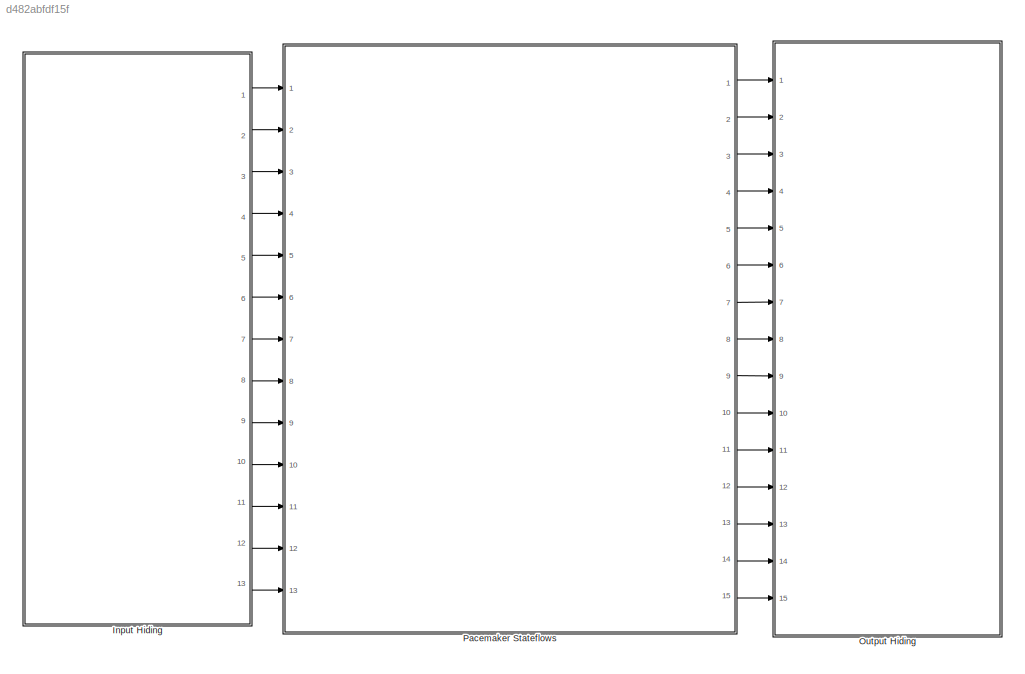
MODEL slx_d482abfdf15f
KIND model
CONFIG AbsTol = auto
CONFIG EnableMultiTasking = on
CONFIG FixedStep = 1e-3
CONFIG MaxStep = auto
CONFIG MinStep = auto
CONFIG RelTol = 1e-3
CONFIG SampleTimeConstraint = Unconstrained
CONFIG SolverName = FixedStepAuto
CONFIG StartTime = 0.0
CONFIG StopTime = 10.0
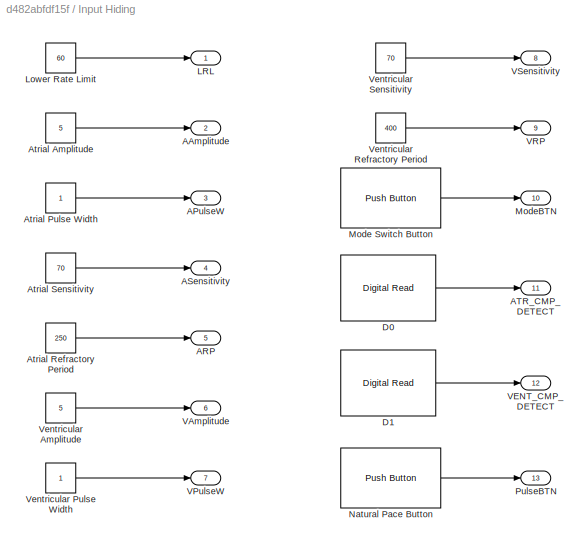
BLOCK [SubSystem] Input Hiding
  Ports = [0, 13]
  RequestExecContextInheritance = off
BLOCK [Outport] Input Hiding/AAmplitude
  OutDataTypeStr = double
  Port = 2
BLOCK [Outport] Input Hiding/APulseW
  OutDataTypeStr = double
  Port = 3
BLOCK [Outport] Input Hiding/ARP
  OutDataTypeStr = double
  Port = 5
BLOCK [Outport] Input Hiding/ASensitivity
  OutDataTypeStr = double
  Port = 4
BLOCK [Outport] Input Hiding/ATR_CMP_DETECT
  OutDataTypeStr = boolean
  Port = 11
BLOCK [Constant] Input Hiding/Atrial Amplitude
  OutDataTypeStr = double
  Value = 5
BLOCK [Constant] Input Hiding/Atrial Pulse Width
  OutDataTypeStr = double
BLOCK [Constant] Input Hiding/Atrial Refractory Period
  OutDataTypeStr = double
  Value = 250
BLOCK [Constant] Input Hiding/Atrial Sensitivity
  OutDataTypeStr = double
  Value = 70
BLOCK [Reference] Input Hiding/D0  REF=frdmk64flib/Digital Read
  Ports = [0, 1]
  SourceBlock = frdmk64flib/Digital Read
  SourceProductBaseCode = EC_FRDM_K64F
  SourceType = freedomk64f.DigitalRead
BLOCK [Reference] Input Hiding/D1  REF=frdmk64flib/Digital Read
  Ports = [0, 1]
  SourceBlock = frdmk64flib/Digital Read
  SourceProductBaseCode = EC_FRDM_K64F
  SourceType = freedomk64f.DigitalRead
BLOCK [Outport] Input Hiding/LRL
  OutDataTypeStr = double
BLOCK [Constant] Input Hiding/Lower Rate Limit
  OutDataTypeStr = double
  Value = 60
BLOCK [Reference] Input Hiding/Mode Switch Button  REF=frdmk64flib/Push Button
  Ports = [0, 1]
  SourceBlock = frdmk64flib/Push Button
  SourceProductBaseCode = EC_FRDM_K64F
  SourceType = freedomk64f.PushButton
BLOCK [Outport] Input Hiding/ModeBTN
  OutDataTypeStr = boolean
  Port = 10
BLOCK [Reference] Input Hiding/Natural Pace Button  REF=frdmk64flib/Push Button
  Ports = [0, 1]
  SourceBlock = frdmk64flib/Push Button
  SourceProductBaseCode = EC_FRDM_K64F
  SourceType = freedomk64f.PushButton
BLOCK [Outport] Input Hiding/PulseBTN
  OutDataTypeStr = boolean
  Port = 13
BLOCK [Outport] Input Hiding/VAmplitude
  OutDataTypeStr = double
  Port = 6
BLOCK [Outport] Input Hiding/VENT_CMP_DETECT
  OutDataTypeStr = boolean
  Port = 12
BLOCK [Outport] Input Hiding/VPulseW
  OutDataTypeStr = double
  Port = 7
BLOCK [Outport] Input Hiding/VRP
  OutDataTypeStr = double
  Port = 9
BLOCK [Outport] Input Hiding/VSensitivity
  OutDataTypeStr = double
  Port = 8
BLOCK [Constant] Input Hiding/Ventricular Amplitude
  OutDataTypeStr = double
  Value = 5
BLOCK [Constant] Input Hiding/Ventricular Pulse Width
  OutDataTypeStr = double
BLOCK [Constant] Input Hiding/Ventricular Refractory Period
  OutDataTypeStr = double
  Value = 400
BLOCK [Constant] Input Hiding/Ventricular Sensitivity
  OutDataTypeStr = double
  Value = 70
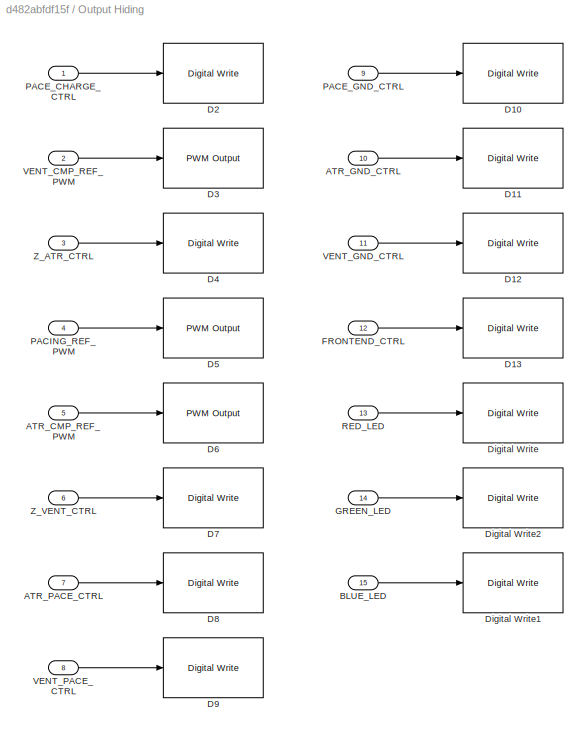
BLOCK [SubSystem] Output Hiding
  Ports = [15]
  RequestExecContextInheritance = off
BLOCK [Inport] Output Hiding/ATR_CMP_REF_PWM
  OutDataTypeStr = double
  Port = 5
BLOCK [Inport] Output Hiding/ATR_GND_CTRL
  OutDataTypeStr = double
  Port = 10
BLOCK [Inport] Output Hiding/ATR_PACE_CTRL
  OutDataTypeStr = double
  Port = 7
BLOCK [Inport] Output Hiding/BLUE_LED
  OutDataTypeStr = double
  Port = 15
BLOCK [Reference] Output Hiding/D10  REF=frdmk64flib/Digital Write
  Ports = [1]
  SourceBlock = frdmk64flib/Digital Write
  SourceProductBaseCode = EC_FRDM_K64F
  SourceType = freedomk64f.DigitalWrite
BLOCK [Reference] Output Hiding/D11  REF=frdmk64flib/Digital Write
  Ports = [1]
  SourceBlock = frdmk64flib/Digital Write
  SourceProductBaseCode = EC_FRDM_K64F
  SourceType = freedomk64f.DigitalWrite
BLOCK [Reference] Output Hiding/D12  REF=frdmk64flib/Digital Write
  Ports = [1]
  SourceBlock = frdmk64flib/Digital Write
  SourceProductBaseCode = EC_FRDM_K64F
  SourceType = freedomk64f.DigitalWrite
BLOCK [Reference] Output Hiding/D13  REF=frdmk64flib/Digital Write
  Ports = [1]
  SourceBlock = frdmk64flib/Digital Write
  SourceProductBaseCode = EC_FRDM_K64F
  SourceType = freedomk64f.DigitalWrite
BLOCK [Reference] Output Hiding/D2  REF=frdmk64flib/Digital Write
  Ports = [1]
  SourceBlock = frdmk64flib/Digital Write
  SourceProductBaseCode = EC_FRDM_K64F
  SourceType = freedomk64f.DigitalWrite
BLOCK [Reference] Output Hiding/D3  REF=frdmk64flib/PWM Output
  Ports = [1]
  SourceBlock = frdmk64flib/PWM Output
  SourceProductBaseCode = EC_FRDM_K64F
  SourceType = freedomk64f.PWMOutput
BLOCK [Reference] Output Hiding/D4  REF=frdmk64flib/Digital Write
  Ports = [1]
  SourceBlock = frdmk64flib/Digital Write
  SourceProductBaseCode = EC_FRDM_K64F
  SourceType = freedomk64f.DigitalWrite
BLOCK [Reference] Output Hiding/D5  REF=frdmk64flib/PWM Output
  Ports = [1]
  SourceBlock = frdmk64flib/PWM Output
  SourceProductBaseCode = EC_FRDM_K64F
  SourceType = freedomk64f.PWMOutput
BLOCK [Reference] Output Hiding/D6  REF=frdmk64flib/PWM Output
  Ports = [1]
  SourceBlock = frdmk64flib/PWM Output
  SourceProductBaseCode = EC_FRDM_K64F
  SourceType = freedomk64f.PWMOutput
BLOCK [Reference] Output Hiding/D7  REF=frdmk64flib/Digital Write
  Ports = [1]
  SourceBlock = frdmk64flib/Digital Write
  SourceProductBaseCode = EC_FRDM_K64F
  SourceType = freedomk64f.DigitalWrite
BLOCK [Reference] Output Hiding/D8   REF=frdmk64flib/Digital Write
  Ports = [1]
  SourceBlock = frdmk64flib/Digital Write
  SourceProductBaseCode = EC_FRDM_K64F
  SourceType = freedomk64f.DigitalWrite
BLOCK [Reference] Output Hiding/D9  REF=frdmk64flib/Digital Write
  Ports = [1]
  SourceBlock = frdmk64flib/Digital Write
  SourceProductBaseCode = EC_FRDM_K64F
  SourceType = freedomk64f.DigitalWrite
BLOCK [Reference] Output Hiding/Digital Write  REF=frdmk64flib/Digital Write
  Ports = [1]
  SourceBlock = frdmk64flib/Digital Write
  SourceProductBaseCode = EC_FRDM_K64F
  SourceType = freedomk64f.DigitalWrite
BLOCK [Reference] Output Hiding/Digital Write1  REF=frdmk64flib/Digital Write
  Ports = [1]
  SourceBlock = frdmk64flib/Digital Write
  SourceProductBaseCode = EC_FRDM_K64F
  SourceType = freedomk64f.DigitalWrite
BLOCK [Reference] Output Hiding/Digital Write2  REF=frdmk64flib/Digital Write
  Ports = [1]
  SourceBlock = frdmk64flib/Digital Write
  SourceProductBaseCode = EC_FRDM_K64F
  SourceType = freedomk64f.DigitalWrite
BLOCK [Inport] Output Hiding/FRONTEND_CTRL
  OutDataTypeStr = double
  Port = 12
BLOCK [Inport] Output Hiding/GREEN_LED
  OutDataTypeStr = double
  Port = 14
BLOCK [Inport] Output Hiding/PACE_CHARGE_CTRL
  OutDataTypeStr = double
BLOCK [Inport] Output Hiding/PACE_GND_CTRL
  OutDataTypeStr = double
  Port = 9
BLOCK [Inport] Output Hiding/PACING_REF_PWM
  OutDataTypeStr = double
  Port = 4
BLOCK [Inport] Output Hiding/RED_LED
  OutDataTypeStr = double
  Port = 13
BLOCK [Inport] Output Hiding/VENT_CMP_REF_PWM
  OutDataTypeStr = double
  Port = 2
BLOCK [Inport] Output Hiding/VENT_GND_CTRL
  OutDataTypeStr = double
  Port = 11
BLOCK [Inport] Output Hiding/VENT_PACE_CTRL
  OutDataTypeStr = double
  Port = 8
BLOCK [Inport] Output Hiding/Z_ATR_CTRL
  OutDataTypeStr = double
  Port = 3
BLOCK [Inport] Output Hiding/Z_VENT_CTRL
  OutDataTypeStr = double
  Port = 6
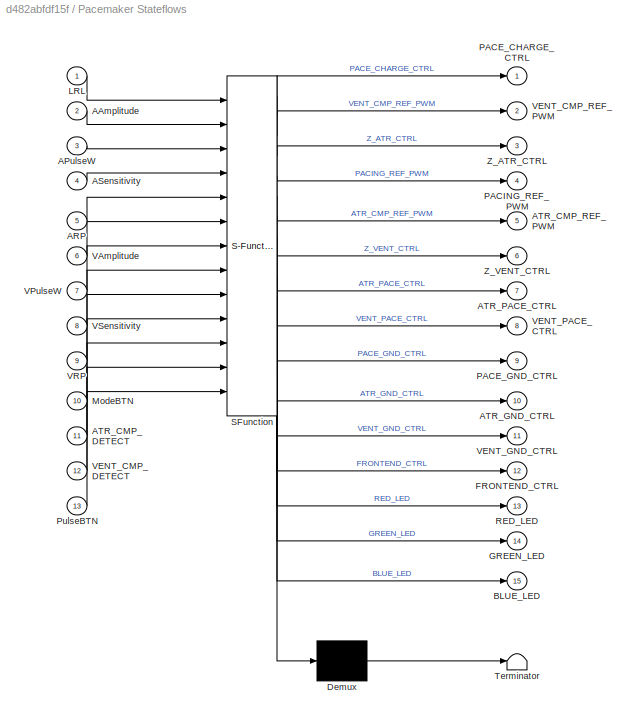
BLOCK [SubSystem] Pacemaker Stateflows
  ErrorFcn = Stateflow.Translate.translate
  PermitHierarchicalResolution = ExplicitOnly
  Ports = [13, 15]
  RequestExecContextInheritance = off
  SFBlockType = Chart
  TreatAsAtomicUnit = on
BLOCK [Demux] Pacemaker Stateflows/ Demux 
  Outputs = 1
  Ports = [1, 1]
BLOCK [S-Function] Pacemaker Stateflows/ SFunction 
  EnableBusSupport = on
  FunctionName = sf_sfun
  PortCounts = [13 16]
  Ports = [13, 16]
  SFcnIsStateOwnerBlock = off
  SFunctionDeploymentMode = off
  Tag = Stateflow S-Function 3
BLOCK [Terminator] Pacemaker Stateflows/ Terminator 
BLOCK [Inport] Pacemaker Stateflows/AAmplitude
  Port = 2
BLOCK [Inport] Pacemaker Stateflows/APulseW
  Port = 3
BLOCK [Inport] Pacemaker Stateflows/ARP
  Port = 5
BLOCK [Inport] Pacemaker Stateflows/ASensitivity
  Port = 4
BLOCK [Inport] Pacemaker Stateflows/ATR_CMP_DETECT
  Port = 11
BLOCK [Outport] Pacemaker Stateflows/ATR_CMP_REF_PWM
  Port = 5
BLOCK [Outport] Pacemaker Stateflows/ATR_GND_CTRL
  Port = 10
BLOCK [Outport] Pacemaker Stateflows/ATR_PACE_CTRL
  Port = 7
BLOCK [Outport] Pacemaker Stateflows/BLUE_LED
  Port = 15
BLOCK [Outport] Pacemaker Stateflows/FRONTEND_CTRL
  Port = 12
BLOCK [Outport] Pacemaker Stateflows/GREEN_LED
  Port = 14
BLOCK [Inport] Pacemaker Stateflows/LRL
BLOCK [Inport] Pacemaker Stateflows/ModeBTN
  Port = 10
BLOCK [Outport] Pacemaker Stateflows/PACE_CHARGE_CTRL
BLOCK [Outport] Pacemaker Stateflows/PACE_GND_CTRL
  Port = 9
BLOCK [Outport] Pacemaker Stateflows/PACING_REF_PWM
  Port = 4
BLOCK [Inport] Pacemaker Stateflows/PulseBTN
  Port = 13
BLOCK [Outport] Pacemaker Stateflows/RED_LED
  Port = 13
BLOCK [Inport] Pacemaker Stateflows/VAmplitude
  Port = 6
BLOCK [Inport] Pacemaker Stateflows/VENT_CMP_DETECT
  Port = 12
BLOCK [Outport] Pacemaker Stateflows/VENT_CMP_REF_PWM
  Port = 2
BLOCK [Outport] Pacemaker Stateflows/VENT_GND_CTRL
  Port = 11
BLOCK [Outport] Pacemaker Stateflows/VENT_PACE_CTRL
  Port = 8
BLOCK [Inport] Pacemaker Stateflows/VPulseW
  Port = 7
BLOCK [Inport] Pacemaker Stateflows/VRP
  Port = 9
BLOCK [Inport] Pacemaker Stateflows/VSensitivity
  Port = 8
BLOCK [Outport] Pacemaker Stateflows/Z_ATR_CTRL
  Port = 3
BLOCK [Outport] Pacemaker Stateflows/Z_VENT_CTRL
  Port = 6
LINE Input Hiding/Atrial Amplitude:1 -> Input Hiding/AAmplitude:1
LINE Input Hiding/Atrial Pulse Width:1 -> Input Hiding/APulseW:1
LINE Input Hiding/Atrial Refractory Period:1 -> Input Hiding/ARP:1
LINE Input Hiding/Atrial Sensitivity:1 -> Input Hiding/ASensitivity:1
LINE Input Hiding/D0:1 -> Input Hiding/ATR_CMP_DETECT:1
LINE Input Hiding/D1:1 -> Input Hiding/VENT_CMP_DETECT:1
LINE Input Hiding/Lower Rate Limit:1 -> Input Hiding/LRL:1
LINE Input Hiding/Mode Switch Button:1 -> Input Hiding/ModeBTN:1
LINE Input Hiding/Natural Pace Button:1 -> Input Hiding/PulseBTN:1
LINE Input Hiding/Ventricular Amplitude:1 -> Input Hiding/VAmplitude:1
LINE Input Hiding/Ventricular Pulse Width:1 -> Input Hiding/VPulseW:1
LINE Input Hiding/Ventricular Refractory Period:1 -> Input Hiding/VRP:1
LINE Input Hiding/Ventricular Sensitivity:1 -> Input Hiding/VSensitivity:1
LINE Input Hiding:1 -> Pacemaker Stateflows:1
LINE Input Hiding:10 -> Pacemaker Stateflows:10
LINE Input Hiding:11 -> Pacemaker Stateflows:11
LINE Input Hiding:12 -> Pacemaker Stateflows:12
LINE Input Hiding:13 -> Pacemaker Stateflows:13
LINE Input Hiding:2 -> Pacemaker Stateflows:2
LINE Input Hiding:3 -> Pacemaker Stateflows:3
LINE Input Hiding:4 -> Pacemaker Stateflows:4
LINE Input Hiding:5 -> Pacemaker Stateflows:5
LINE Input Hiding:6 -> Pacemaker Stateflows:6
LINE Input Hiding:7 -> Pacemaker Stateflows:7
LINE Input Hiding:8 -> Pacemaker Stateflows:8
LINE Input Hiding:9 -> Pacemaker Stateflows:9
LINE Output Hiding/ATR_CMP_REF_PWM:1 -> Output Hiding/D6:1
LINE Output Hiding/ATR_GND_CTRL:1 -> Output Hiding/D11:1
LINE Output Hiding/ATR_PACE_CTRL:1 -> Output Hiding/D8 :1
LINE Output Hiding/BLUE_LED:1 -> Output Hiding/Digital Write1:1
LINE Output Hiding/FRONTEND_CTRL:1 -> Output Hiding/D13:1
LINE Output Hiding/GREEN_LED:1 -> Output Hiding/Digital Write2:1
LINE Output Hiding/PACE_CHARGE_CTRL:1 -> Output Hiding/D2:1
LINE Output Hiding/PACE_GND_CTRL:1 -> Output Hiding/D10:1
LINE Output Hiding/PACING_REF_PWM:1 -> Output Hiding/D5:1
LINE Output Hiding/RED_LED:1 -> Output Hiding/Digital Write:1
LINE Output Hiding/VENT_CMP_REF_PWM:1 -> Output Hiding/D3:1
LINE Output Hiding/VENT_GND_CTRL:1 -> Output Hiding/D12:1
LINE Output Hiding/VENT_PACE_CTRL:1 -> Output Hiding/D9:1
LINE Output Hiding/Z_ATR_CTRL:1 -> Output Hiding/D4:1
LINE Output Hiding/Z_VENT_CTRL:1 -> Output Hiding/D7:1
LINE Pacemaker Stateflows:1 -> Output Hiding:1
LINE Pacemaker Stateflows:10 -> Output Hiding:10
LINE Pacemaker Stateflows:11 -> Output Hiding:11
LINE Pacemaker Stateflows:12 -> Output Hiding:12
LINE Pacemaker Stateflows:13 -> Output Hiding:13
LINE Pacemaker Stateflows:14 -> Output Hiding:14
LINE Pacemaker Stateflows:15 -> Output Hiding:15
LINE Pacemaker Stateflows:2 -> Output Hiding:2
LINE Pacemaker Stateflows:3 -> Output Hiding:3
LINE Pacemaker Stateflows:4 -> Output Hiding:4
LINE Pacemaker Stateflows:5 -> Output Hiding:5
LINE Pacemaker Stateflows:6 -> Output Hiding:6
LINE Pacemaker Stateflows:7 -> Output Hiding:7
LINE Pacemaker Stateflows:8 -> Output Hiding:8
LINE Pacemaker Stateflows:9 -> Output Hiding:9
CHART Pacemaker Stateflows states=15 transitions=27
  STATE_LABEL 'AOO\nentry:\nVENT_PACE_CTRL = 0; VENT_GND_CTRL = 0; PACE_GND_CTRL = 1;\nZ_VENT_CTRL = 0; Z_ATR_CTRL = 0; PACING_REF_PWM = AAmplitude*20;'
  STATE_LABEL 'PACE_ATR\nentry:\nPACE_CHARGE_CTRL = 0;\nATR_GND_CTRL = 0;\nATR_PACE_CTRL = 1;\nRED_LED = 1;'
  STATE_LABEL 'C22_CHARGE\nentry:\nATR_PACE_CTRL = 0;\nATR_GND_CTRL = 1;\nPACE_CHARGE_CTRL = 1;\nRED_LED = 0;'
  STATE_LABEL 'after(APulseW,msec)'
  STATE_LABEL 'after((60000/LRL)-APulseW,msec)'
  STATE_LABEL 'PACE_ATR\nentry:\nPACE_CHARGE_CTRL = 0;\nATR_GND_CTRL = 0;\nATR_PACE_CTRL = 1;\nRED_LED = 1;'
  STATE_LABEL 'C22_CHARGE\nentry:\nATR_PACE_CTRL = 0;\nATR_GND_CTRL = 1;\nPACE_CHARGE_CTRL = 1;\nRED_LED = 0;'
  STATE_LABEL 'VOO\nentry:\nATR_PACE_CTRL = 0; ATR_GND_CTRL = 0; PACE_GND_CTRL = 1;\nZ_ATR_CTRL = 0; Z_VENT_CTRL = 0; PACING_REF_PWM = VAmplitude*20;'
  STATE_LABEL 'PACE_VENT\nentry:\nPACE_CHARGE_CTRL = 0;\nVENT_GND_CTRL = 0;\nVENT_PACE_CTRL = 1;\nBLUE_LED = 1;'
  STATE_LABEL 'C22_CHARGE\nentry:\nVENT_PACE_CTRL = 0;\nVENT_GND_CTRL = 1;\nPACE_CHARGE_CTRL = 1;\nBLUE_LED = 0;'
  STATE_LABEL 'after(VPulseW,msec)'
  STATE_LABEL 'after((60000/LRL)-VPulseW,msec)'
  STATE_LABEL 'PACE_VENT\nentry:\nPACE_CHARGE_CTRL = 0;\nVENT_GND_CTRL = 0;\nVENT_PACE_CTRL = 1;\nBLUE_LED = 1;'
  STATE_LABEL 'C22_CHARGE\nentry:\nVENT_PACE_CTRL = 0;\nVENT_GND_CTRL = 1;\nPACE_CHARGE_CTRL = 1;\nBLUE_LED = 0;'
  STATE_LABEL 'MODE\nentry:\nMode = Mode + 1;\nMode = rem(Mode ,4);\nRED_LED = 1;\nGREEN_LED = 1;\nBLUE_LED = 1;\nexit:\nRED_LED = 0;\nGREEN_LED = 0;\nBLUE_LED = 0;'
  STATE_LABEL 'AAI\nentry:\nVENT_PACE_CTRL = 0; VENT_GND_CTRL = 0; PACE_GND_CTRL = 1;\nZ_VENT_CTRL = 0; Z_ATR_CTRL = 0; FRONTEND_CTRL = 1;\nPACING_REF_PWM = AAmplitude*20; ATR_CMP_REF_PWM=ASensitivity;'
  STATE_LABEL 'PACE_ATR\nentry:\nPACE_CHARGE_CTRL = 0;\nATR_GND_CTRL = 0;\nATR_PACE_CTRL = 1;\nRED_LED = 1;\n'
  STATE_LABEL 'C22_CHARGE\nentry:\nATR_PACE_CTRL = 0;\nATR_GND_CTRL = 1;\nPACE_CHARGE_CTRL = 1;\nRED_LED = 0;'
  STATE_LABEL 'REFRACTORY\nentry:\nGREEN_LED = 1;\nexit:\nGREEN_LED = 0;\n'
  STATE_LABEL '[after(APulseW,msec)]'
  STATE_LABEL 'after((60000/LRL)-APulseW,msec)'
  STATE_LABEL 'after(60000/LRL - ARP + APulseW,msec)'
  STATE_LABEL 'after(ARP, msec)\n[ATR_CMP_DETECT == true || PulseBTN == true]'
  STATE_LABEL 'after(ARP,msec)[ATR_CMP_DETECT == true || PulseBTN == true]'
  STATE_LABEL 'PACE_ATR\nentry:\nPACE_CHARGE_CTRL = 0;\nATR_GND_CTRL = 0;\nATR_PACE_CTRL = 1;\nRED_LED = 1;\n'
  STATE_LABEL 'C22_CHARGE\nentry:\nATR_PACE_CTRL = 0;\nATR_GND_CTRL = 1;\nPACE_CHARGE_CTRL = 1;\nRED_LED = 0;'
  STATE_LABEL 'REFRACTORY\nentry:\nGREEN_LED = 1;\nexit:\nGREEN_LED = 0;\n'
  STATE_LABEL 'VVI\nentry:\nATR_PACE_CTRL = 0; ATR_GND_CTRL = 0; PACE_GND_CTRL = 1;\nZ_VENT_CTRL = 0; Z_ATR_CTRL = 0; FRONTEND_CTRL = 1;\nPACING_REF_PWM = VAmplitude*20; VENT_CMP_REF_PWM=VSensitivity;'
  STATE_LABEL 'C22_CHARGE\nentry:\nVENT_PACE_CTRL = 0;\nVENT_GND_CTRL = 1;\nPACE_CHARGE_CTRL = 1;\nBLUE_LED = 0;'
  STATE_LABEL 'PACE_VENT\nentry:\nPACE_CHARGE_CTRL = 0;\nVENT_GND_CTRL = 0;\nVENT_PACE_CTRL = 1;\nBLUE_LED = 1;\n'
  STATE_LABEL 'REFRACTORY\nentry:\nGREEN_LED = 1;\nexit:\nGREEN_LED = 0;\n'
  STATE_LABEL '[after(VPulseW,msec)]'
  STATE_LABEL 'after((60000/LRL)-VPulseW,msec)'
  STATE_LABEL 'after(60000/LRL - VRP + VPulseW,msec)'
  STATE_LABEL 'after(VRP,msec)\n[VENT_CMP_DETECT == true || PulseBTN == true]'
  STATE_LABEL 'after(VRP,msec)[VENT_CMP_DETECT == true || PulseBTN == true]'
  STATE_LABEL 'C22_CHARGE\nentry:\nVENT_PACE_CTRL = 0;\nVENT_GND_CTRL = 1;\nPACE_CHARGE_CTRL = 1;\nBLUE_LED = 0;'
  STATE_LABEL 'PACE_VENT\nentry:\nPACE_CHARGE_CTRL = 0;\nVENT_GND_CTRL = 0;\nVENT_PACE_CTRL = 1;\nBLUE_LED = 1;\n'
  STATE_LABEL 'REFRACTORY\nentry:\nGREEN_LED = 1;\nexit:\nGREEN_LED = 0;\n'
CHART  states=0 transitions=0
